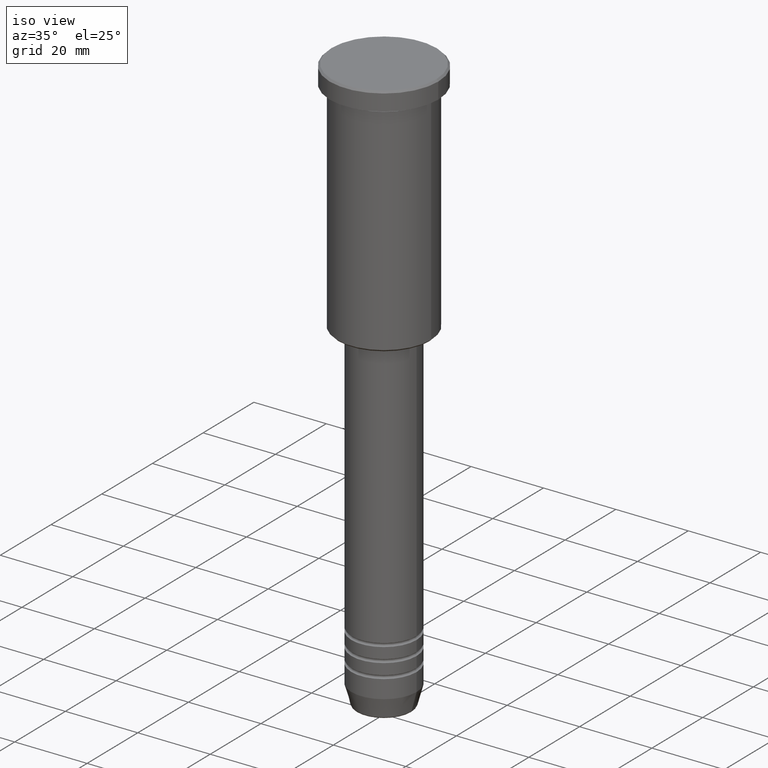
[diagram: clean part render]
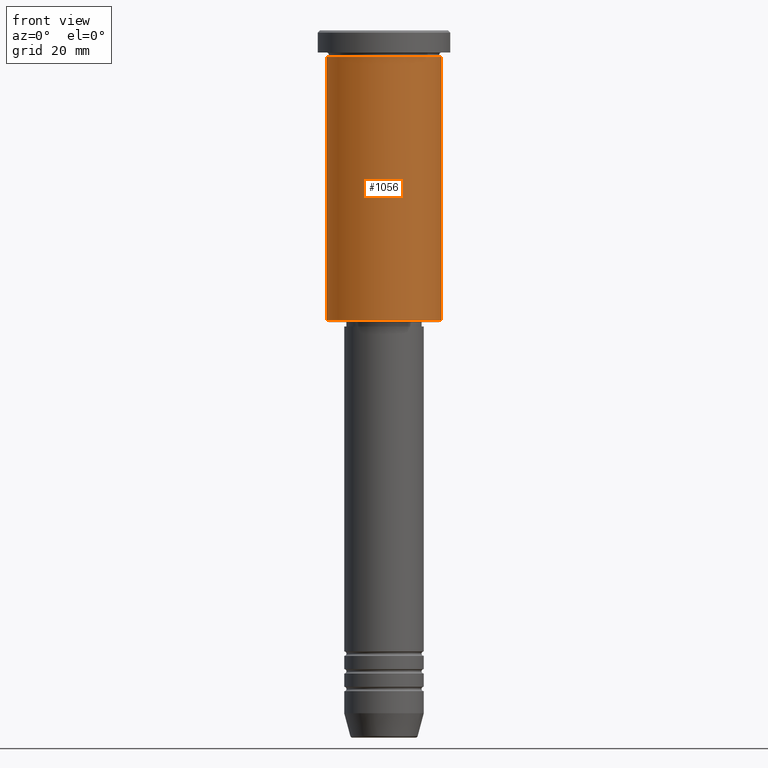
[diagram: tour spotlight — one face highlighted and labeled with its STEP entity id]
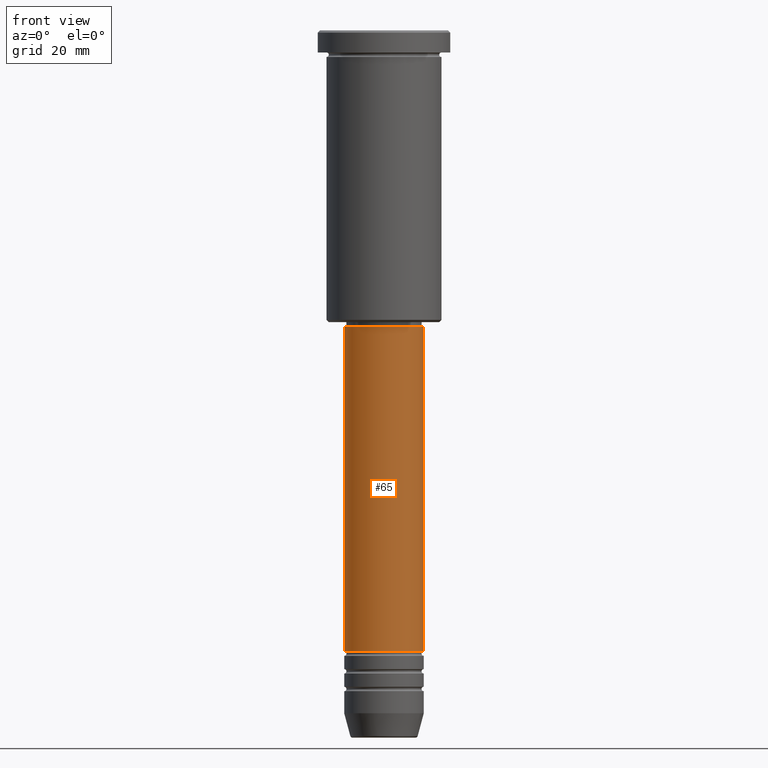
[diagram: tour spotlight — one face highlighted and labeled with its STEP entity id]
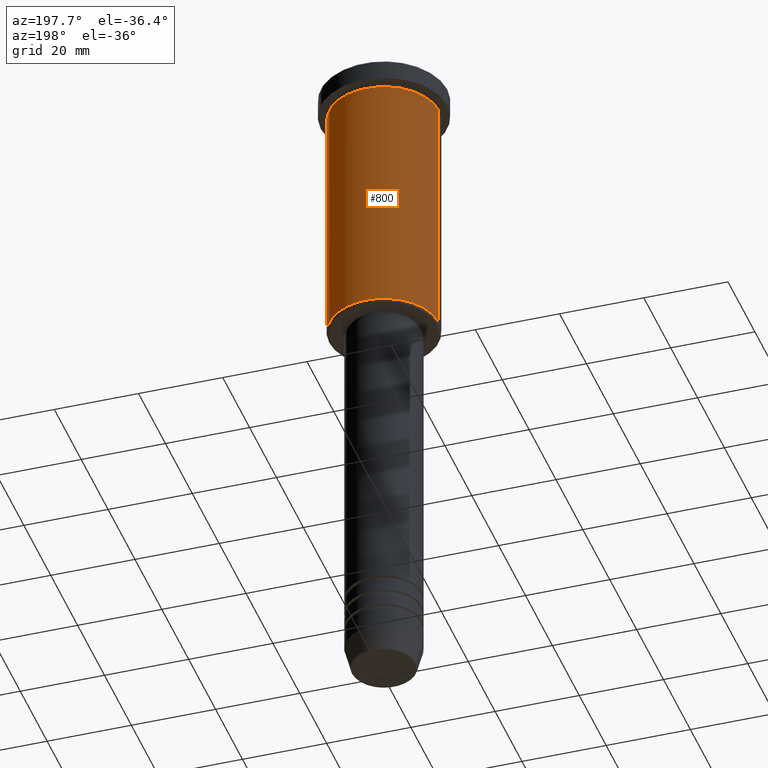
[diagram: tour spotlight — one face highlighted and labeled with its STEP entity id]
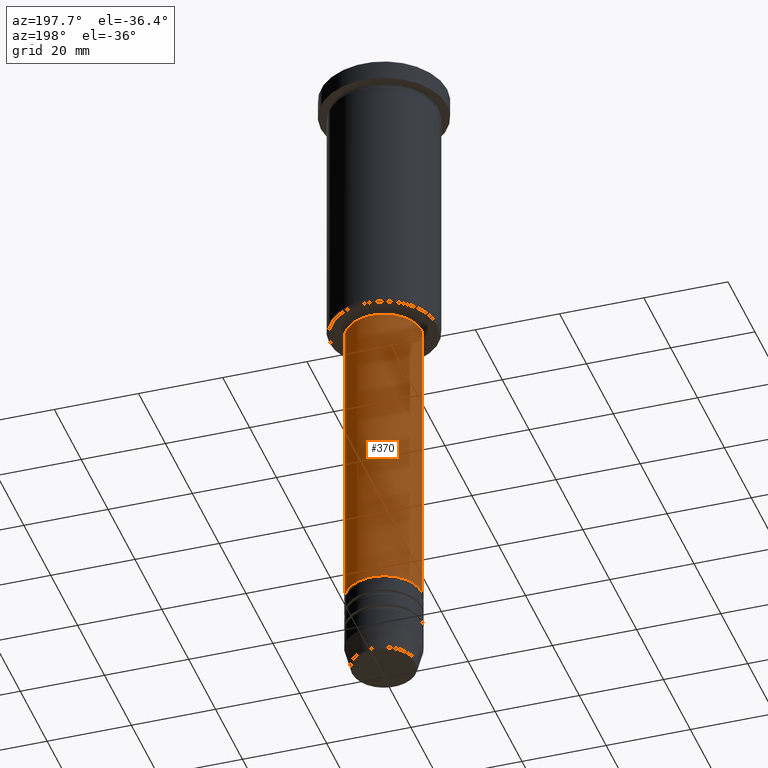
[diagram: tour spotlight — one face highlighted and labeled with its STEP entity id]
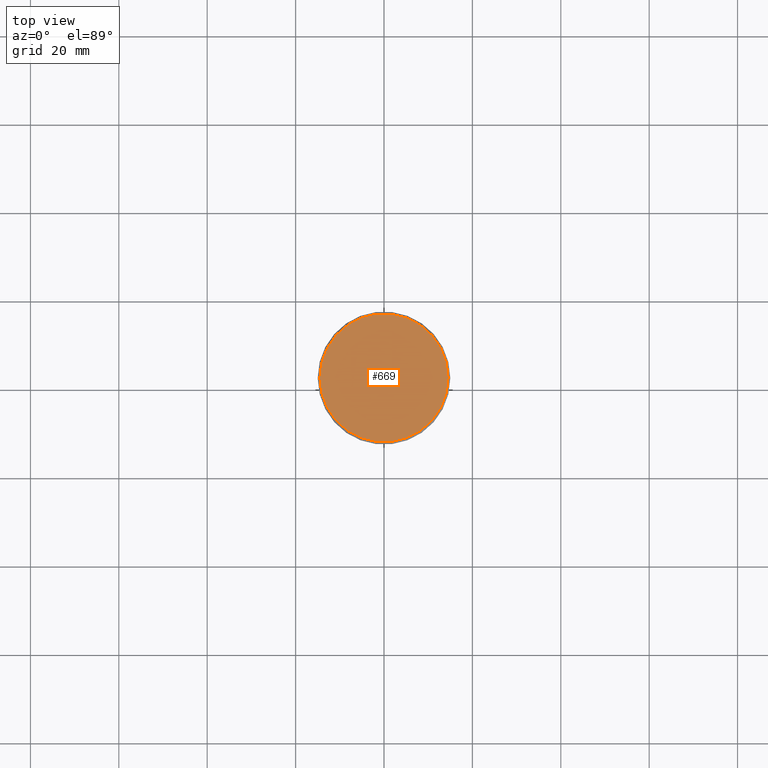
[diagram: tour spotlight — one face highlighted and labeled with its STEP entity id]
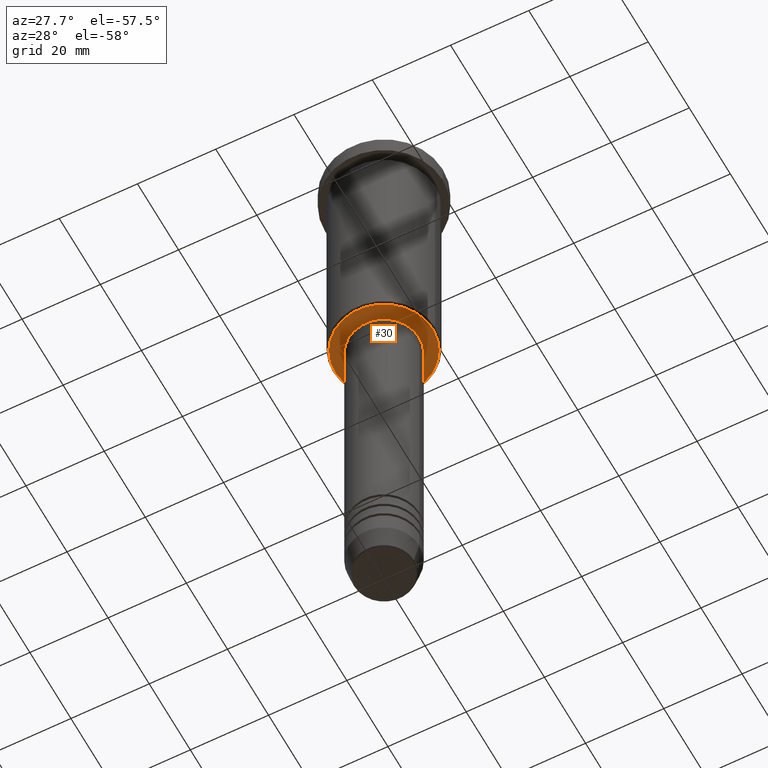
[diagram: tour spotlight — one face highlighted and labeled with its STEP entity id]
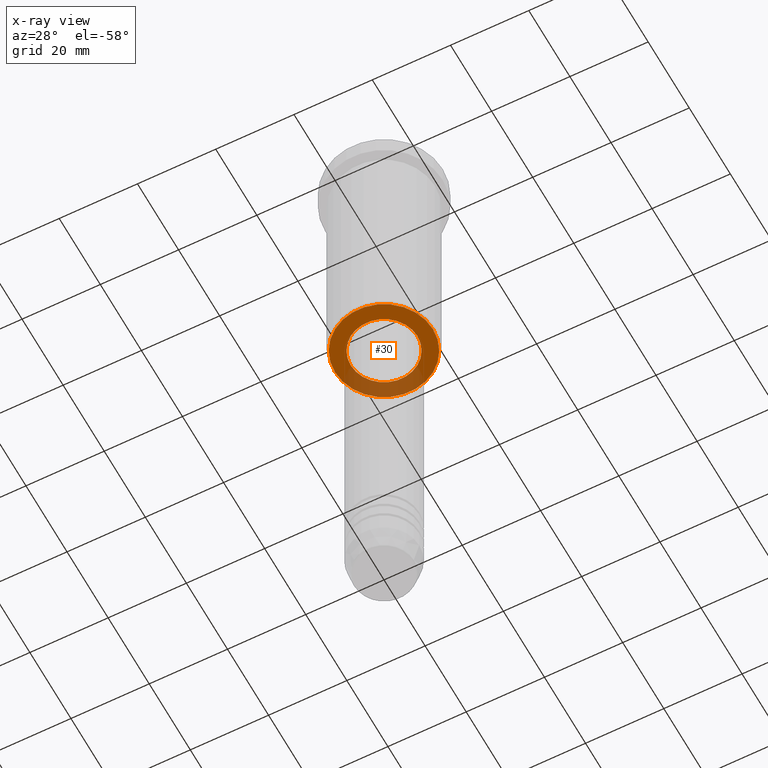
[diagram: x-ray of the same camera — body ghosted, this tour face saturated]
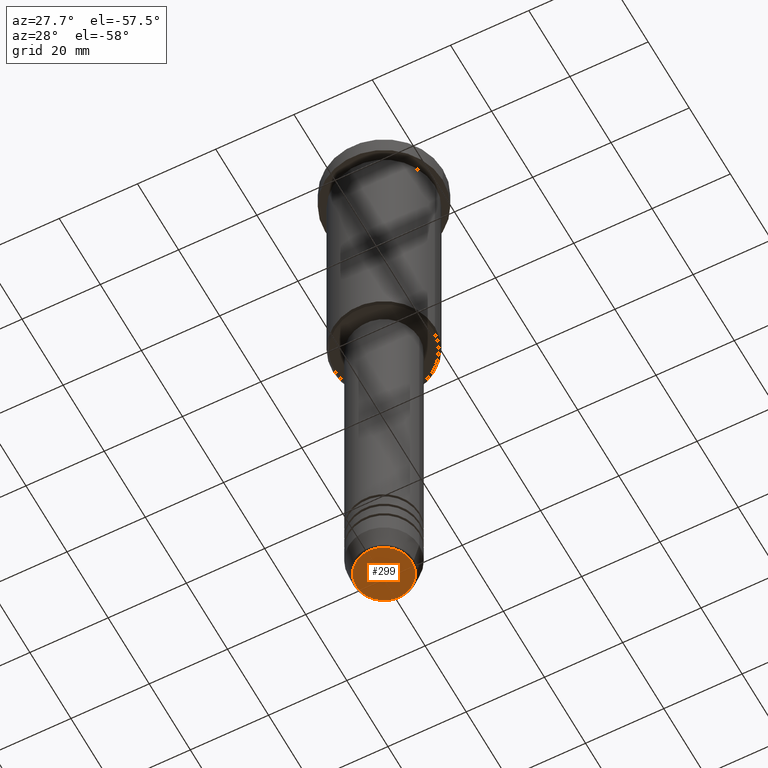
[diagram: tour spotlight — one face highlighted and labeled with its STEP entity id]
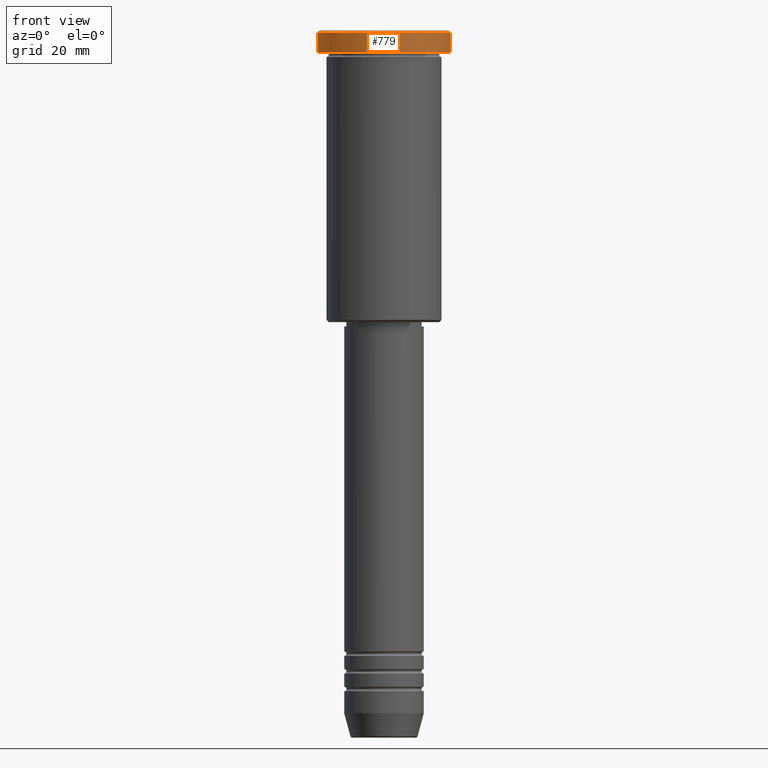
[diagram: tour spotlight — one face highlighted and labeled with its STEP entity id]
A machine part: a face-by-face anatomy tour. The part has 43 B-rep faces; the first image is the clean iso view, then the 8 largest visible faces are spotlighted one at a time (largest first), each with its STEP entity span.

Face 1 — front view, entity #1056. In plain terms, the highlighted cylindrical surface (partial cylindrical patch) has radius 13 mm, axis along (-0, -0, 1).
Definition (entity closure, byte-faithful):
#37 = AXIS2_PLACEMENT_3D ( 'NONE', #164, #238, #970 ) ;
#102 = CARTESIAN_POINT ( 'NONE',  ( 13.00000000000000178, 0.000000000000000000, 0.000000000000000000 ) ) ;
#120 = ORIENTED_EDGE ( 'NONE', *, *, #289, .T. ) ;
#164 = CARTESIAN_POINT ( 'NONE',  ( 0.000000000000000000, 0.000000000000000000, -5.999999999999999112 ) ) ;
#165 = CARTESIAN_POINT ( 'NONE',  ( -13.00000000000000178, 1.592040838891559293E-15, -65.49999999999997158 ) ) ;
#195 = DIRECTION ( 'NONE',  ( -0.000000000000000000, -0.000000000000000000, 1.000000000000000000 ) ) ;
#237 = ORIENTED_EDGE ( 'NONE', *, *, #558, .T. ) ;
#238 = DIRECTION ( 'NONE',  ( -0.000000000000000000, -0.000000000000000000, 1.000000000000000000 ) ) ;
#249 = EDGE_LOOP ( 'NONE', ( #603, #237, #120, #315 ) ) ;
#257 = CARTESIAN_POINT ( 'NONE',  ( 13.00000000000000178, 0.000000000000000000, -5.999999999999999112 ) ) ;
#289 = EDGE_CURVE ( 'NONE', #484, #439, #828, .T. ) ;
#291 = DIRECTION ( 'NONE',  ( -0.000000000000000000, -0.000000000000000000, 1.000000000000000000 ) ) ;
#315 = ORIENTED_EDGE ( 'NONE', *, *, #909, .F. ) ;
#391 = EDGE_CURVE ( 'NONE', #432, #430, #872, .T. ) ;
#430 = VERTEX_POINT ( 'NONE', #717 ) ;
#432 = VERTEX_POINT ( 'NONE', #165 ) ;
#439 = VERTEX_POINT ( 'NONE', #257 ) ;
#484 = VERTEX_POINT ( 'NONE', #825 ) ;
#491 = CIRCLE ( 'NONE', #668, 13.00000000000000178 ) ;
#502 = DIRECTION ( 'NONE',  ( -0.000000000000000000, -0.000000000000000000, 1.000000000000000000 ) ) ;
#509 = AXIS2_PLACEMENT_3D ( 'NONE', #915, #195, #833 ) ;
#548 = VECTOR ( 'NONE', #291, 1000.000000000000000 ) ;
#554 = FACE_OUTER_BOUND ( 'NONE', #249, .T. ) ;
#558 = EDGE_CURVE ( 'NONE', #432, #484, #491, .T. ) ;
#603 = ORIENTED_EDGE ( 'NONE', *, *, #391, .F. ) ;
#614 = CARTESIAN_POINT ( 'NONE',  ( -13.00000000000000178, 1.592040838891559293E-15, 0.000000000000000000 ) ) ;
#668 = AXIS2_PLACEMENT_3D ( 'NONE', #737, #722, #726 ) ;
#717 = CARTESIAN_POINT ( 'NONE',  ( -13.00000000000000178, 1.592040838891559293E-15, -5.999999999999999112 ) ) ;
#722 = DIRECTION ( 'NONE',  ( -0.000000000000000000, -0.000000000000000000, 1.000000000000000000 ) ) ;
#726 = DIRECTION ( 'NONE',  ( -1.000000000000000000, 0.000000000000000000, 0.000000000000000000 ) ) ;
#737 = CARTESIAN_POINT ( 'NONE',  ( 0.000000000000000000, 0.000000000000000000, -65.49999999999997158 ) ) ;
#825 = CARTESIAN_POINT ( 'NONE',  ( 13.00000000000000178, 0.000000000000000000, -65.49999999999997158 ) ) ;
#828 = LINE ( 'NONE', #102, #925 ) ;
#833 = DIRECTION ( 'NONE',  ( 1.000000000000000000, 0.000000000000000000, 0.000000000000000000 ) ) ;
#872 = LINE ( 'NONE', #614, #548 ) ;
#909 = EDGE_CURVE ( 'NONE', #430, #439, #996, .T. ) ;
#915 = CARTESIAN_POINT ( 'NONE',  ( 0.000000000000000000, 0.000000000000000000, 0.000000000000000000 ) ) ;
#925 = VECTOR ( 'NONE', #502, 1000.000000000000000 ) ;
#970 = DIRECTION ( 'NONE',  ( 1.000000000000000000, 0.000000000000000000, 0.000000000000000000 ) ) ;
#996 = CIRCLE ( 'NONE', #37, 13.00000000000000178 ) ;
#1000 = CYLINDRICAL_SURFACE ( 'NONE', #509, 13.00000000000000178 ) ;
#1056 = ADVANCED_FACE ( 'NONE', ( #554 ), #1000, .T. ) ;

Face 2 — front view, entity #65. In plain terms, the highlighted cylindrical surface (partial cylindrical patch) has radius 9 mm, axis along (-0, -0, 1).
Definition (entity closure, byte-faithful):
#2 = CARTESIAN_POINT ( 'NONE',  ( 9.000000000000001776, 0.000000000000000000, -140.5000000000000000 ) ) ;
#14 = VERTEX_POINT ( 'NONE', #620 ) ;
#26 = ORIENTED_EDGE ( 'NONE', *, *, #617, .F. ) ;
#65 = ADVANCED_FACE ( 'NONE', ( #504 ), #805, .T. ) ;
#123 = EDGE_LOOP ( 'NONE', ( #561, #377, #184, #26 ) ) ;
#125 = CARTESIAN_POINT ( 'NONE',  ( -9.000000000000001776, 1.102182119232617911E-15, -140.5000000000000000 ) ) ;
#147 = DIRECTION ( 'NONE',  ( -0.000000000000000000, -0.000000000000000000, 1.000000000000000000 ) ) ;
#184 = ORIENTED_EDGE ( 'NONE', *, *, #428, .T. ) ;
#188 = CARTESIAN_POINT ( 'NONE',  ( 0.000000000000000000, 0.000000000000000000, -140.5000000000000000 ) ) ;
#244 = CARTESIAN_POINT ( 'NONE',  ( 9.000000000000000000, 0.000000000000000000, 0.000000000000000000 ) ) ;
#251 = EDGE_CURVE ( 'NONE', #747, #14, #1171, .T. ) ;
#252 = AXIS2_PLACEMENT_3D ( 'NONE', #279, #562, #1168 ) ;
#279 = CARTESIAN_POINT ( 'NONE',  ( 0.000000000000000000, 0.000000000000000000, -67.00000000000002842 ) ) ;
#305 = VERTEX_POINT ( 'NONE', #483 ) ;
#377 = ORIENTED_EDGE ( 'NONE', *, *, #721, .T. ) ;
#428 = EDGE_CURVE ( 'NONE', #652, #305, #516, .T. ) ;
#483 = CARTESIAN_POINT ( 'NONE',  ( 8.999999999999998224, 0.000000000000000000, -67.00000000000002842 ) ) ;
#504 = FACE_OUTER_BOUND ( 'NONE', #123, .T. ) ;
#506 = VECTOR ( 'NONE', #1160, 1000.000000000000000 ) ;
#516 = LINE ( 'NONE', #244, #607 ) ;
#522 = DIRECTION ( 'NONE',  ( 1.000000000000000000, 0.000000000000000000, 0.000000000000000000 ) ) ;
#561 = ORIENTED_EDGE ( 'NONE', *, *, #251, .F. ) ;
#562 = DIRECTION ( 'NONE',  ( -0.000000000000000000, -0.000000000000000000, 1.000000000000000000 ) ) ;
#567 = DIRECTION ( 'NONE',  ( -0.000000000000000000, -0.000000000000000000, 1.000000000000000000 ) ) ;
#589 = CIRCLE ( 'NONE', #252, 8.999999999999998224 ) ;
#607 = VECTOR ( 'NONE', #1076, 1000.000000000000000 ) ;
#617 = EDGE_CURVE ( 'NONE', #14, #305, #589, .T. ) ;
#620 = CARTESIAN_POINT ( 'NONE',  ( -8.999999999999998224, 1.102182119232617714E-15, -67.00000000000002842 ) ) ;
#652 = VERTEX_POINT ( 'NONE', #2 ) ;
#654 = CARTESIAN_POINT ( 'NONE',  ( -9.000000000000000000, 1.102182119232617714E-15, 0.000000000000000000 ) ) ;
#721 = EDGE_CURVE ( 'NONE', #747, #652, #1104, .T. ) ;
#747 = VERTEX_POINT ( 'NONE', #125 ) ;
#763 = DIRECTION ( 'NONE',  ( 1.000000000000000000, 0.000000000000000000, 0.000000000000000000 ) ) ;
#805 = CYLINDRICAL_SURFACE ( 'NONE', #880, 9.000000000000000000 ) ;
#880 = AXIS2_PLACEMENT_3D ( 'NONE', #973, #147, #522 ) ;
#973 = CARTESIAN_POINT ( 'NONE',  ( 0.000000000000000000, 0.000000000000000000, 0.000000000000000000 ) ) ;
#1076 = DIRECTION ( 'NONE',  ( -0.000000000000000000, -0.000000000000000000, 1.000000000000000000 ) ) ;
#1104 = CIRCLE ( 'NONE', #1161, 9.000000000000001776 ) ;
#1160 = DIRECTION ( 'NONE',  ( -0.000000000000000000, -0.000000000000000000, 1.000000000000000000 ) ) ;
#1161 = AXIS2_PLACEMENT_3D ( 'NONE', #188, #567, #763 ) ;
#1168 = DIRECTION ( 'NONE',  ( 1.000000000000000000, 0.000000000000000000, 0.000000000000000000 ) ) ;
#1171 = LINE ( 'NONE', #654, #506 ) ;

Face 3 — auxiliary view, entity #800. In plain terms, the highlighted cylindrical surface (partial cylindrical patch) has radius 13 mm, axis along (-0, -0, 1).
Definition (entity closure, byte-faithful):
#42 = ORIENTED_EDGE ( 'NONE', *, *, #412, .F. ) ;
#97 = DIRECTION ( 'NONE',  ( -1.000000000000000000, 0.000000000000000000, 0.000000000000000000 ) ) ;
#102 = CARTESIAN_POINT ( 'NONE',  ( 13.00000000000000178, 0.000000000000000000, 0.000000000000000000 ) ) ;
#110 = AXIS2_PLACEMENT_3D ( 'NONE', #1093, #285, #97 ) ;
#165 = CARTESIAN_POINT ( 'NONE',  ( -13.00000000000000178, 1.592040838891559293E-15, -65.49999999999997158 ) ) ;
#257 = CARTESIAN_POINT ( 'NONE',  ( 13.00000000000000178, 0.000000000000000000, -5.999999999999999112 ) ) ;
#285 = DIRECTION ( 'NONE',  ( -0.000000000000000000, -0.000000000000000000, 1.000000000000000000 ) ) ;
#289 = EDGE_CURVE ( 'NONE', #484, #439, #828, .T. ) ;
#291 = DIRECTION ( 'NONE',  ( -0.000000000000000000, -0.000000000000000000, 1.000000000000000000 ) ) ;
#292 = CIRCLE ( 'NONE', #110, 13.00000000000000178 ) ;
#352 = EDGE_CURVE ( 'NONE', #484, #432, #292, .T. ) ;
#391 = EDGE_CURVE ( 'NONE', #432, #430, #872, .T. ) ;
#407 = CYLINDRICAL_SURFACE ( 'NONE', #792, 13.00000000000000178 ) ;
#412 = EDGE_CURVE ( 'NONE', #439, #430, #446, .T. ) ;
#430 = VERTEX_POINT ( 'NONE', #717 ) ;
#432 = VERTEX_POINT ( 'NONE', #165 ) ;
#439 = VERTEX_POINT ( 'NONE', #257 ) ;
#446 = CIRCLE ( 'NONE', #568, 13.00000000000000178 ) ;
#484 = VERTEX_POINT ( 'NONE', #825 ) ;
#490 = ORIENTED_EDGE ( 'NONE', *, *, #289, .F. ) ;
#502 = DIRECTION ( 'NONE',  ( -0.000000000000000000, -0.000000000000000000, 1.000000000000000000 ) ) ;
#548 = VECTOR ( 'NONE', #291, 1000.000000000000000 ) ;
#568 = AXIS2_PLACEMENT_3D ( 'NONE', #1133, #760, #704 ) ;
#614 = CARTESIAN_POINT ( 'NONE',  ( -13.00000000000000178, 1.592040838891559293E-15, 0.000000000000000000 ) ) ;
#675 = ORIENTED_EDGE ( 'NONE', *, *, #352, .T. ) ;
#697 = FACE_OUTER_BOUND ( 'NONE', #895, .T. ) ;
#704 = DIRECTION ( 'NONE',  ( 1.000000000000000000, 0.000000000000000000, 0.000000000000000000 ) ) ;
#717 = CARTESIAN_POINT ( 'NONE',  ( -13.00000000000000178, 1.592040838891559293E-15, -5.999999999999999112 ) ) ;
#760 = DIRECTION ( 'NONE',  ( -0.000000000000000000, -0.000000000000000000, 1.000000000000000000 ) ) ;
#792 = AXIS2_PLACEMENT_3D ( 'NONE', #1127, #860, #1115 ) ;
#793 = ORIENTED_EDGE ( 'NONE', *, *, #391, .T. ) ;
#800 = ADVANCED_FACE ( 'NONE', ( #697 ), #407, .T. ) ;
#825 = CARTESIAN_POINT ( 'NONE',  ( 13.00000000000000178, 0.000000000000000000, -65.49999999999997158 ) ) ;
#828 = LINE ( 'NONE', #102, #925 ) ;
#860 = DIRECTION ( 'NONE',  ( -0.000000000000000000, -0.000000000000000000, 1.000000000000000000 ) ) ;
#872 = LINE ( 'NONE', #614, #548 ) ;
#895 = EDGE_LOOP ( 'NONE', ( #675, #793, #42, #490 ) ) ;
#925 = VECTOR ( 'NONE', #502, 1000.000000000000000 ) ;
#1093 = CARTESIAN_POINT ( 'NONE',  ( 0.000000000000000000, 0.000000000000000000, -65.49999999999997158 ) ) ;
#1115 = DIRECTION ( 'NONE',  ( 1.000000000000000000, 0.000000000000000000, 0.000000000000000000 ) ) ;
#1127 = CARTESIAN_POINT ( 'NONE',  ( 0.000000000000000000, 0.000000000000000000, 0.000000000000000000 ) ) ;
#1133 = CARTESIAN_POINT ( 'NONE',  ( 0.000000000000000000, 0.000000000000000000, -5.999999999999999112 ) ) ;

Face 4 — auxiliary view, entity #370. In plain terms, the highlighted cylindrical surface (partial cylindrical patch) has radius 9 mm, axis along (-0, -0, 1).
Definition (entity closure, byte-faithful):
#2 = CARTESIAN_POINT ( 'NONE',  ( 9.000000000000001776, 0.000000000000000000, -140.5000000000000000 ) ) ;
#14 = VERTEX_POINT ( 'NONE', #620 ) ;
#94 = AXIS2_PLACEMENT_3D ( 'NONE', #1173, #748, #560 ) ;
#125 = CARTESIAN_POINT ( 'NONE',  ( -9.000000000000001776, 1.102182119232617911E-15, -140.5000000000000000 ) ) ;
#191 = CIRCLE ( 'NONE', #1159, 8.999999999999998224 ) ;
#215 = ORIENTED_EDGE ( 'NONE', *, *, #251, .T. ) ;
#244 = CARTESIAN_POINT ( 'NONE',  ( 9.000000000000000000, 0.000000000000000000, 0.000000000000000000 ) ) ;
#251 = EDGE_CURVE ( 'NONE', #747, #14, #1171, .T. ) ;
#305 = VERTEX_POINT ( 'NONE', #483 ) ;
#332 = EDGE_CURVE ( 'NONE', #305, #14, #191, .T. ) ;
#370 = ADVANCED_FACE ( 'NONE', ( #765 ), #598, .T. ) ;
#428 = EDGE_CURVE ( 'NONE', #652, #305, #516, .T. ) ;
#466 = ORIENTED_EDGE ( 'NONE', *, *, #1082, .T. ) ;
#471 = CIRCLE ( 'NONE', #94, 9.000000000000001776 ) ;
#483 = CARTESIAN_POINT ( 'NONE',  ( 8.999999999999998224, 0.000000000000000000, -67.00000000000002842 ) ) ;
#506 = VECTOR ( 'NONE', #1160, 1000.000000000000000 ) ;
#516 = LINE ( 'NONE', #244, #607 ) ;
#560 = DIRECTION ( 'NONE',  ( 1.000000000000000000, 0.000000000000000000, 0.000000000000000000 ) ) ;
#587 = AXIS2_PLACEMENT_3D ( 'NONE', #865, #1098, #956 ) ;
#598 = CYLINDRICAL_SURFACE ( 'NONE', #587, 9.000000000000000000 ) ;
#607 = VECTOR ( 'NONE', #1076, 1000.000000000000000 ) ;
#620 = CARTESIAN_POINT ( 'NONE',  ( -8.999999999999998224, 1.102182119232617714E-15, -67.00000000000002842 ) ) ;
#637 = EDGE_LOOP ( 'NONE', ( #466, #215, #766, #849 ) ) ;
#652 = VERTEX_POINT ( 'NONE', #2 ) ;
#654 = CARTESIAN_POINT ( 'NONE',  ( -9.000000000000000000, 1.102182119232617714E-15, 0.000000000000000000 ) ) ;
#663 = DIRECTION ( 'NONE',  ( -0.000000000000000000, -0.000000000000000000, 1.000000000000000000 ) ) ;
#695 = CARTESIAN_POINT ( 'NONE',  ( 0.000000000000000000, 0.000000000000000000, -67.00000000000002842 ) ) ;
#747 = VERTEX_POINT ( 'NONE', #125 ) ;
#748 = DIRECTION ( 'NONE',  ( -0.000000000000000000, -0.000000000000000000, 1.000000000000000000 ) ) ;
#765 = FACE_OUTER_BOUND ( 'NONE', #637, .T. ) ;
#766 = ORIENTED_EDGE ( 'NONE', *, *, #332, .F. ) ;
#849 = ORIENTED_EDGE ( 'NONE', *, *, #428, .F. ) ;
#865 = CARTESIAN_POINT ( 'NONE',  ( 0.000000000000000000, 0.000000000000000000, 0.000000000000000000 ) ) ;
#956 = DIRECTION ( 'NONE',  ( 1.000000000000000000, 0.000000000000000000, 0.000000000000000000 ) ) ;
#1040 = DIRECTION ( 'NONE',  ( 1.000000000000000000, 0.000000000000000000, 0.000000000000000000 ) ) ;
#1076 = DIRECTION ( 'NONE',  ( -0.000000000000000000, -0.000000000000000000, 1.000000000000000000 ) ) ;
#1082 = EDGE_CURVE ( 'NONE', #652, #747, #471, .T. ) ;
#1098 = DIRECTION ( 'NONE',  ( -0.000000000000000000, -0.000000000000000000, 1.000000000000000000 ) ) ;
#1159 = AXIS2_PLACEMENT_3D ( 'NONE', #695, #663, #1040 ) ;
#1160 = DIRECTION ( 'NONE',  ( -0.000000000000000000, -0.000000000000000000, 1.000000000000000000 ) ) ;
#1171 = LINE ( 'NONE', #654, #506 ) ;
#1173 = CARTESIAN_POINT ( 'NONE',  ( 0.000000000000000000, 0.000000000000000000, -140.5000000000000000 ) ) ;

Face 5 — top view, entity #669. In plain terms, the highlighted planar face has unit normal (0, -0, 1).
Definition (entity closure, byte-faithful):
#78 = DIRECTION ( 'NONE',  ( -0.000000000000000000, -0.000000000000000000, 1.000000000000000000 ) ) ;
#126 = VERTEX_POINT ( 'NONE', #341 ) ;
#149 = DIRECTION ( 'NONE',  ( 1.000000000000000000, 0.000000000000000000, 0.000000000000000000 ) ) ;
#187 = CARTESIAN_POINT ( 'NONE',  ( 14.49999999999999645, 1.806354028742345802E-15, 0.000000000000000000 ) ) ;
#294 = AXIS2_PLACEMENT_3D ( 'NONE', #456, #356, #296 ) ;
#296 = DIRECTION ( 'NONE',  ( 1.000000000000000000, 0.000000000000000000, 0.000000000000000000 ) ) ;
#341 = CARTESIAN_POINT ( 'NONE',  ( -14.49999999999999645, 0.000000000000000000, 0.000000000000000000 ) ) ;
#356 = DIRECTION ( 'NONE',  ( 0.000000000000000000, -0.000000000000000000, 1.000000000000000000 ) ) ;
#456 = CARTESIAN_POINT ( 'NONE',  ( 0.000000000000000000, 0.000000000000000000, 0.000000000000000000 ) ) ;
#571 = AXIS2_PLACEMENT_3D ( 'NONE', #918, #78, #923 ) ;
#583 = ORIENTED_EDGE ( 'NONE', *, *, #1107, .T. ) ;
#669 = ADVANCED_FACE ( 'NONE', ( #995 ), #1006, .T. ) ;
#672 = CIRCLE ( 'NONE', #754, 14.49999999999999645 ) ;
#754 = AXIS2_PLACEMENT_3D ( 'NONE', #1050, #1153, #149 ) ;
#862 = EDGE_LOOP ( 'NONE', ( #1094, #583 ) ) ;
#918 = CARTESIAN_POINT ( 'NONE',  ( 0.000000000000000000, 0.000000000000000000, 0.000000000000000000 ) ) ;
#923 = DIRECTION ( 'NONE',  ( 1.000000000000000000, 0.000000000000000000, 0.000000000000000000 ) ) ;
#971 = EDGE_CURVE ( 'NONE', #126, #1108, #672, .T. ) ;
#995 = FACE_OUTER_BOUND ( 'NONE', #862, .T. ) ;
#1006 = PLANE ( 'NONE',  #294 ) ;
#1050 = CARTESIAN_POINT ( 'NONE',  ( 0.000000000000000000, 0.000000000000000000, 0.000000000000000000 ) ) ;
#1070 = CIRCLE ( 'NONE', #571, 14.49999999999999645 ) ;
#1094 = ORIENTED_EDGE ( 'NONE', *, *, #971, .T. ) ;
#1107 = EDGE_CURVE ( 'NONE', #1108, #126, #1070, .T. ) ;
#1108 = VERTEX_POINT ( 'NONE', #187 ) ;
#1153 = DIRECTION ( 'NONE',  ( -0.000000000000000000, -0.000000000000000000, 1.000000000000000000 ) ) ;

Face 6 — auxiliary view, entity #30. An x-ray twin of the same camera follows (body ghosted, this face saturated) — the face is partly hidden behind the body. In plain terms, the highlighted planar face has unit normal (0, 0, -1).
Definition (entity closure, byte-faithful):
#30 = ADVANCED_FACE ( 'NONE', ( #434, #420 ), #813, .T. ) ;
#40 = EDGE_LOOP ( 'NONE', ( #59, #596 ) ) ;
#48 = DIRECTION ( 'NONE',  ( -1.000000000000000000, 0.000000000000000000, -0.000000000000000000 ) ) ;
#59 = ORIENTED_EDGE ( 'NONE', *, *, #764, .T. ) ;
#69 = VERTEX_POINT ( 'NONE', #1131 ) ;
#81 = DIRECTION ( 'NONE',  ( -0.000000000000000000, -0.000000000000000000, 1.000000000000000000 ) ) ;
#92 = AXIS2_PLACEMENT_3D ( 'NONE', #227, #411, #314 ) ;
#121 = EDGE_CURVE ( 'NONE', #844, #440, #231, .T. ) ;
#131 = DIRECTION ( 'NONE',  ( 0.000000000000000000, 0.000000000000000000, -1.000000000000000000 ) ) ;
#181 = CARTESIAN_POINT ( 'NONE',  ( 12.49999999999996980, 0.000000000000000000, -66.00000000000000000 ) ) ;
#227 = CARTESIAN_POINT ( 'NONE',  ( 0.000000000000000000, 0.000000000000000000, -66.00000000000000000 ) ) ;
#231 = CIRCLE ( 'NONE', #904, 8.500000000000000000 ) ;
#314 = DIRECTION ( 'NONE',  ( -1.000000000000000000, 0.000000000000000000, 0.000000000000000000 ) ) ;
#322 = CARTESIAN_POINT ( 'NONE',  ( 0.000000000000000000, 0.000000000000000000, -66.00000000000000000 ) ) ;
#351 = DIRECTION ( 'NONE',  ( -0.000000000000000000, -0.000000000000000000, 1.000000000000000000 ) ) ;
#387 = AXIS2_PLACEMENT_3D ( 'NONE', #899, #351, #816 ) ;
#389 = CARTESIAN_POINT ( 'NONE',  ( -8.500000000000000000, 1.040949779275250140E-15, -66.00000000000000000 ) ) ;
#411 = DIRECTION ( 'NONE',  ( 0.000000000000000000, 0.000000000000000000, -1.000000000000000000 ) ) ;
#420 = FACE_BOUND ( 'NONE', #947, .T. ) ;
#434 = FACE_OUTER_BOUND ( 'NONE', #40, .T. ) ;
#440 = VERTEX_POINT ( 'NONE', #804 ) ;
#454 = ORIENTED_EDGE ( 'NONE', *, *, #121, .T. ) ;
#455 = ORIENTED_EDGE ( 'NONE', *, *, #515, .T. ) ;
#515 = EDGE_CURVE ( 'NONE', #440, #844, #1069, .T. ) ;
#596 = ORIENTED_EDGE ( 'NONE', *, *, #841, .T. ) ;
#648 = AXIS2_PLACEMENT_3D ( 'NONE', #719, #801, #48 ) ;
#658 = DIRECTION ( 'NONE',  ( 1.000000000000000000, 0.000000000000000000, 0.000000000000000000 ) ) ;
#719 = CARTESIAN_POINT ( 'NONE',  ( 0.000000000000000000, 13.00000000000000000, -66.00000000000000000 ) ) ;
#764 = EDGE_CURVE ( 'NONE', #1077, #69, #807, .T. ) ;
#801 = DIRECTION ( 'NONE',  ( 0.000000000000000000, 0.000000000000000000, -1.000000000000000000 ) ) ;
#804 = CARTESIAN_POINT ( 'NONE',  ( 8.500000000000000000, 0.000000000000000000, -66.00000000000000000 ) ) ;
#807 = CIRCLE ( 'NONE', #945, 12.49999999999996980 ) ;
#813 = PLANE ( 'NONE',  #648 ) ;
#816 = DIRECTION ( 'NONE',  ( 1.000000000000000000, 0.000000000000000000, 0.000000000000000000 ) ) ;
#841 = EDGE_CURVE ( 'NONE', #69, #1077, #1014, .T. ) ;
#844 = VERTEX_POINT ( 'NONE', #389 ) ;
#899 = CARTESIAN_POINT ( 'NONE',  ( 0.000000000000000000, 0.000000000000000000, -66.00000000000000000 ) ) ;
#904 = AXIS2_PLACEMENT_3D ( 'NONE', #322, #81, #658 ) ;
#945 = AXIS2_PLACEMENT_3D ( 'NONE', #959, #131, #1030 ) ;
#947 = EDGE_LOOP ( 'NONE', ( #455, #454 ) ) ;
#959 = CARTESIAN_POINT ( 'NONE',  ( 0.000000000000000000, 0.000000000000000000, -66.00000000000000000 ) ) ;
#1014 = CIRCLE ( 'NONE', #92, 12.49999999999996980 ) ;
#1030 = DIRECTION ( 'NONE',  ( -1.000000000000000000, 0.000000000000000000, 0.000000000000000000 ) ) ;
#1069 = CIRCLE ( 'NONE', #387, 8.500000000000000000 ) ;
#1077 = VERTEX_POINT ( 'NONE', #181 ) ;
#1131 = CARTESIAN_POINT ( 'NONE',  ( -12.49999999999996980, 1.561424668912873336E-15, -66.00000000000000000 ) ) ;

Face 7 — auxiliary view, entity #299. In plain terms, the highlighted planar face has unit normal (0, -0, 1).
Definition (entity closure, byte-faithful):
#13 = FACE_OUTER_BOUND ( 'NONE', #930, .T. ) ;
#60 = CARTESIAN_POINT ( 'NONE',  ( 0.000000000000000000, 0.000000000000000000, -159.9999999999999716 ) ) ;
#64 = DIRECTION ( 'NONE',  ( 0.000000000000000000, 0.000000000000000000, -1.000000000000000000 ) ) ;
#84 = EDGE_CURVE ( 'NONE', #542, #239, #503, .T. ) ;
#150 = AXIS2_PLACEMENT_3D ( 'NONE', #890, #64, #867 ) ;
#221 = ORIENTED_EDGE ( 'NONE', *, *, #1003, .T. ) ;
#239 = VERTEX_POINT ( 'NONE', #266 ) ;
#266 = CARTESIAN_POINT ( 'NONE',  ( 7.142615947639344043, 0.000000000000000000, -159.9999999999999716 ) ) ;
#299 = ADVANCED_FACE ( 'NONE', ( #13 ), #400, .F. ) ;
#320 = DIRECTION ( 'NONE',  ( 1.000000000000000000, 0.000000000000000000, 0.000000000000000000 ) ) ;
#339 = DIRECTION ( 'NONE',  ( 0.000000000000000000, 0.000000000000000000, -1.000000000000000000 ) ) ;
#400 = PLANE ( 'NONE',  #467 ) ;
#467 = AXIS2_PLACEMENT_3D ( 'NONE', #511, #1130, #320 ) ;
#503 = CIRCLE ( 'NONE', #150, 7.142615947639344043 ) ;
#511 = CARTESIAN_POINT ( 'NONE',  ( 0.000000000000000000, 0.000000000000000000, -159.9999999999999716 ) ) ;
#520 = CARTESIAN_POINT ( 'NONE',  ( -7.142615947639344043, 9.042911250660027517E-16, -159.9999999999999716 ) ) ;
#542 = VERTEX_POINT ( 'NONE', #520 ) ;
#689 = AXIS2_PLACEMENT_3D ( 'NONE', #60, #339, #1065 ) ;
#867 = DIRECTION ( 'NONE',  ( 1.000000000000000000, 0.000000000000000000, 0.000000000000000000 ) ) ;
#890 = CARTESIAN_POINT ( 'NONE',  ( 0.000000000000000000, 0.000000000000000000, -159.9999999999999716 ) ) ;
#930 = EDGE_LOOP ( 'NONE', ( #221, #1081 ) ) ;
#1003 = EDGE_CURVE ( 'NONE', #239, #542, #1035, .T. ) ;
#1035 = CIRCLE ( 'NONE', #689, 7.142615947639344043 ) ;
#1065 = DIRECTION ( 'NONE',  ( 1.000000000000000000, 0.000000000000000000, 0.000000000000000000 ) ) ;
#1081 = ORIENTED_EDGE ( 'NONE', *, *, #84, .T. ) ;
#1130 = DIRECTION ( 'NONE',  ( 0.000000000000000000, -0.000000000000000000, 1.000000000000000000 ) ) ;

Face 8 — front view, entity #779. In plain terms, the highlighted cylindrical surface (partial cylindrical patch) has radius 15 mm, axis along (-0, -0, 1).
Definition (entity closure, byte-faithful):
#28 = FACE_OUTER_BOUND ( 'NONE', #127, .T. ) ;
#32 = DIRECTION ( 'NONE',  ( 1.000000000000000000, 0.000000000000000000, 0.000000000000000000 ) ) ;
#45 = LINE ( 'NONE', #415, #727 ) ;
#51 = ORIENTED_EDGE ( 'NONE', *, *, #521, .T. ) ;
#63 = ORIENTED_EDGE ( 'NONE', *, *, #746, .F. ) ;
#88 = VERTEX_POINT ( 'NONE', #958 ) ;
#111 = LINE ( 'NONE', #602, #908 ) ;
#127 = EDGE_LOOP ( 'NONE', ( #63, #51, #334, #606 ) ) ;
#134 = AXIS2_PLACEMENT_3D ( 'NONE', #437, #1148, #336 ) ;
#158 = DIRECTION ( 'NONE',  ( -0.000000000000000000, -0.000000000000000000, 1.000000000000000000 ) ) ;
#198 = DIRECTION ( 'NONE',  ( 0.000000000000000000, 0.000000000000000000, -1.000000000000000000 ) ) ;
#204 = CARTESIAN_POINT ( 'NONE',  ( -15.00000000000000000, 1.836970198721029589E-15, -4.999999999999999112 ) ) ;
#263 = VERTEX_POINT ( 'NONE', #1166 ) ;
#303 = DIRECTION ( 'NONE',  ( -0.000000000000000000, -0.000000000000000000, 1.000000000000000000 ) ) ;
#334 = ORIENTED_EDGE ( 'NONE', *, *, #988, .T. ) ;
#336 = DIRECTION ( 'NONE',  ( 1.000000000000000000, 0.000000000000000000, 0.000000000000000000 ) ) ;
#415 = CARTESIAN_POINT ( 'NONE',  ( 15.00000000000000000, 0.000000000000000000, 0.000000000000000000 ) ) ;
#437 = CARTESIAN_POINT ( 'NONE',  ( 0.000000000000000000, 0.000000000000000000, -4.999999999999999112 ) ) ;
#463 = DIRECTION ( 'NONE',  ( 1.000000000000000000, 0.000000000000000000, 0.000000000000000000 ) ) ;
#521 = EDGE_CURVE ( 'NONE', #1156, #88, #1182, .T. ) ;
#526 = AXIS2_PLACEMENT_3D ( 'NONE', #919, #198, #463 ) ;
#602 = CARTESIAN_POINT ( 'NONE',  ( -15.00000000000000000, 1.836970198721029589E-15, 0.000000000000000000 ) ) ;
#606 = ORIENTED_EDGE ( 'NONE', *, *, #633, .T. ) ;
#633 = EDGE_CURVE ( 'NONE', #263, #1083, #854, .T. ) ;
#727 = VECTOR ( 'NONE', #158, 1000.000000000000000 ) ;
#746 = EDGE_CURVE ( 'NONE', #1156, #1083, #111, .T. ) ;
#752 = AXIS2_PLACEMENT_3D ( 'NONE', #864, #303, #32 ) ;
#779 = ADVANCED_FACE ( 'NONE', ( #28 ), #798, .T. ) ;
#798 = CYLINDRICAL_SURFACE ( 'NONE', #752, 15.00000000000000000 ) ;
#854 = CIRCLE ( 'NONE', #526, 15.00000000000000000 ) ;
#864 = CARTESIAN_POINT ( 'NONE',  ( 0.000000000000000000, 0.000000000000000000, 0.000000000000000000 ) ) ;
#908 = VECTOR ( 'NONE', #949, 1000.000000000000000 ) ;
#919 = CARTESIAN_POINT ( 'NONE',  ( 0.000000000000000000, 0.000000000000000000, -0.5000000000000108802 ) ) ;
#949 = DIRECTION ( 'NONE',  ( -0.000000000000000000, -0.000000000000000000, 1.000000000000000000 ) ) ;
#958 = CARTESIAN_POINT ( 'NONE',  ( 15.00000000000000000, 0.000000000000000000, -4.999999999999999112 ) ) ;
#988 = EDGE_CURVE ( 'NONE', #88, #263, #45, .T. ) ;
#1010 = CARTESIAN_POINT ( 'NONE',  ( -15.00000000000000000, 1.836970198721029589E-15, -0.5000000000000108802 ) ) ;
#1083 = VERTEX_POINT ( 'NONE', #1010 ) ;
#1148 = DIRECTION ( 'NONE',  ( -0.000000000000000000, -0.000000000000000000, 1.000000000000000000 ) ) ;
#1156 = VERTEX_POINT ( 'NONE', #204 ) ;
#1166 = CARTESIAN_POINT ( 'NONE',  ( 15.00000000000000000, 0.000000000000000000, -0.5000000000000108802 ) ) ;
#1182 = CIRCLE ( 'NONE', #134, 15.00000000000000000 ) ;